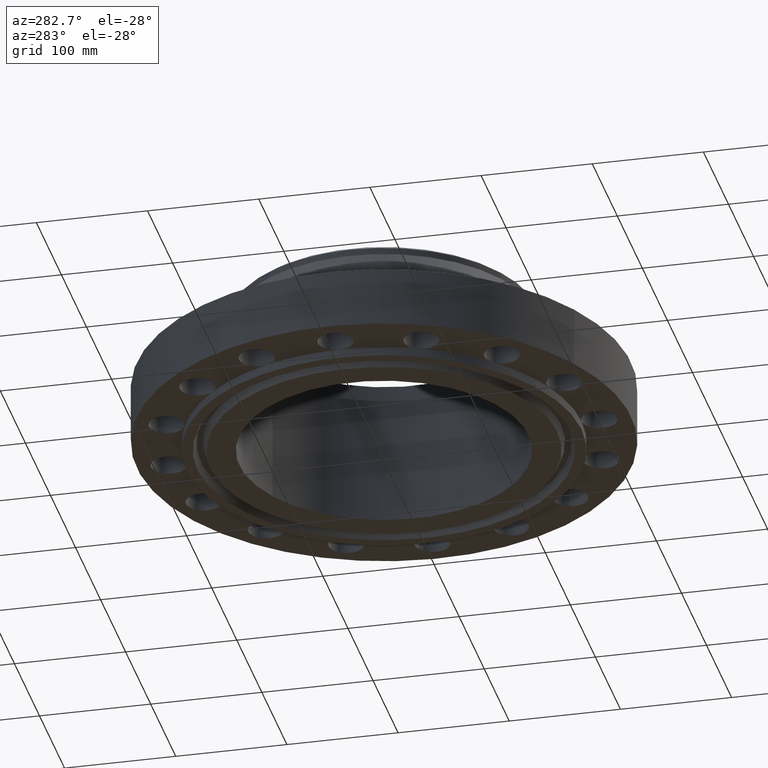
[diagram: clean part render]
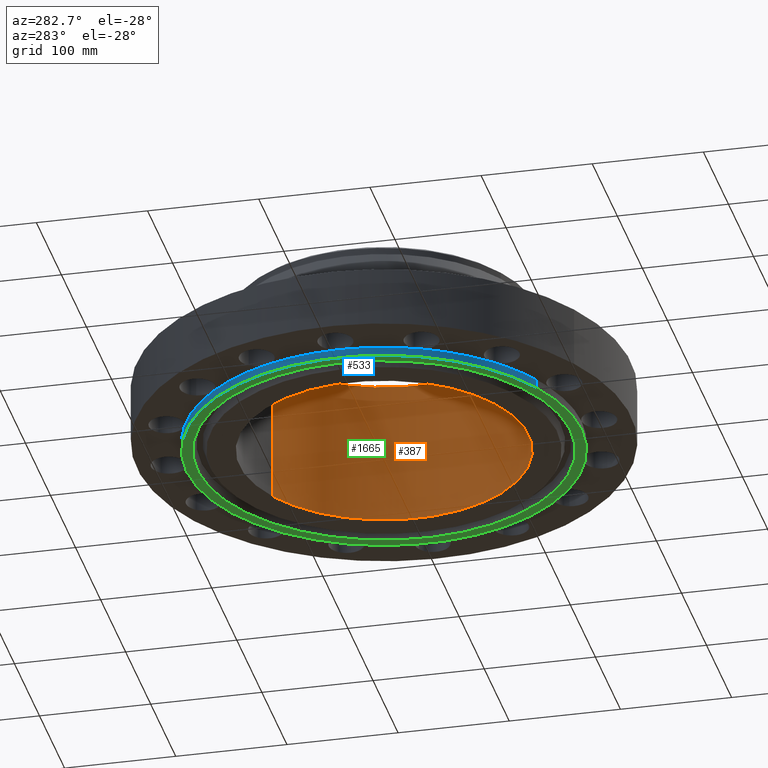
[diagram: same view with three faces highlighted in distinct colors, each labeled with its STEP entity id]
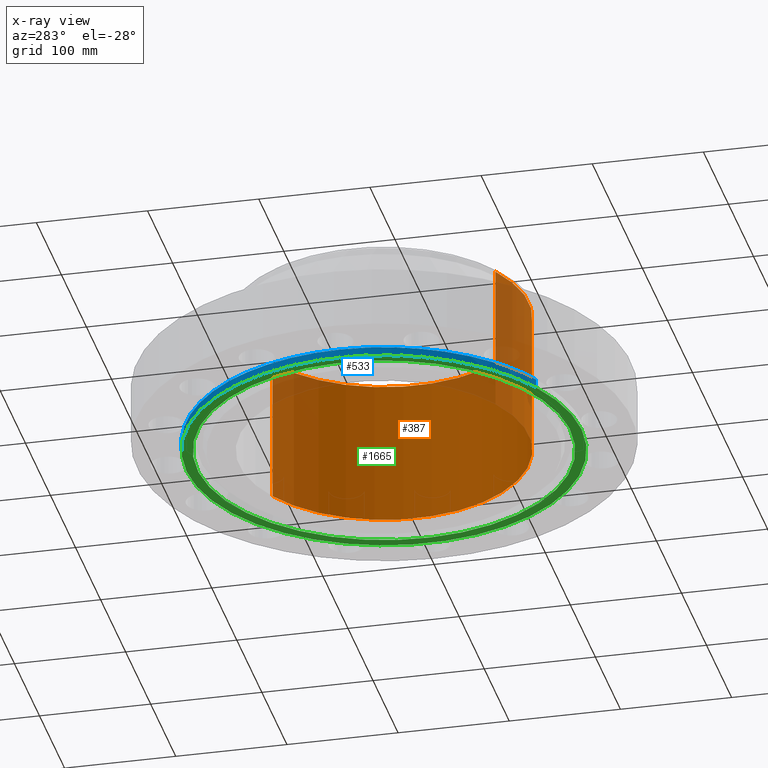
[diagram: x-ray of the same camera — body ghosted, the three highlighted faces saturated]
A machine part, auxiliary view with three faces highlighted in distinct colors.
The next image is the same camera in x-ray (body ghosted, the three faces saturated) — at least one of them is partly hidden behind the body in this view.
Their STEP definitions:

[orange] entity #387 — the highlighted cylindrical surface (partial cylindrical patch) has radius 130.175 mm, axis along (0, 0, -1).
#351=AXIS2_PLACEMENT_3D('Cylinder Axis2P3D',#348,#349,#350) ;
#355=AXIS2_PLACEMENT_3D('Circle Axis2P3D',#353,#354,$) ;
#371=AXIS2_PLACEMENT_3D('Circle Axis2P3D',#369,#370,$) ;
#348=CARTESIAN_POINT('Axis2P3D Location',(0.,0.,2.28350000001)) ;
#353=CARTESIAN_POINT('Axis2P3D Location',(0.,0.,4.88000000002)) ;
#357=CARTESIAN_POINT('Vertex',(2.45705588536,4.49761062971,4.88000000002)) ;
#359=CARTESIAN_POINT('Vertex',(-2.45705588536,-4.49761062971,4.88000000002)) ;
#362=CARTESIAN_POINT('Line Origine',(2.45705588536,4.49761062971,2.28350000001)) ;
#366=CARTESIAN_POINT('Vertex',(2.45705588536,4.49761062971,-0.313000000001)) ;
#369=CARTESIAN_POINT('Axis2P3D Location',(0.,0.,-0.313000000001)) ;
#373=CARTESIAN_POINT('Vertex',(-2.45705588536,-4.49761062971,-0.313000000001)) ;
#376=CARTESIAN_POINT('Line Origine',(-2.45705588536,-4.49761062971,2.28350000001)) ;
#349=DIRECTION('Axis2P3D Direction',(0.,0.,-0.0393700787402)) ;
#350=DIRECTION('Axis2P3D XDirection',(-0.0188750212049,-0.0345504945626,0.)) ;
#354=DIRECTION('Axis2P3D Direction',(0.,0.,-0.0393700787402)) ;
#363=DIRECTION('Vector Direction',(0.,0.,-0.0393700787402)) ;
#370=DIRECTION('Axis2P3D Direction',(0.,0.,-0.0393700787402)) ;
#377=DIRECTION('Vector Direction',(0.,0.,-0.0393700787402)) ;
#364=VECTOR('Line Direction',#363,0.0393700787402) ;
#378=VECTOR('Line Direction',#377,0.0393700787402) ;
#382=ORIENTED_EDGE('',*,*,#361,.F.) ;
#383=ORIENTED_EDGE('',*,*,#368,.T.) ;
#384=ORIENTED_EDGE('',*,*,#375,.T.) ;
#385=ORIENTED_EDGE('',*,*,#380,.F.) ;
#387=ADVANCED_FACE('PartBody',(#386),#352,.F.) ;
#356=CIRCLE('generated circle',#355,5.12500000002) ;
#372=CIRCLE('generated circle',#371,5.12500000002) ;
#352=CYLINDRICAL_SURFACE('generated cylinder',#351,5.12500000002) ;
#361=EDGE_CURVE('',#358,#360,#356,.T.) ;
#368=EDGE_CURVE('',#358,#367,#365,.T.) ;
#375=EDGE_CURVE('',#367,#374,#372,.T.) ;
#380=EDGE_CURVE('',#360,#374,#379,.T.) ;
#381=EDGE_LOOP('',(#382,#383,#384,#385)) ;
#386=FACE_OUTER_BOUND('',#381,.T.) ;
#365=LINE('Line',#362,#364) ;
#379=LINE('Line',#376,#378) ;
#358=VERTEX_POINT('',#357) ;
#360=VERTEX_POINT('',#359) ;
#367=VERTEX_POINT('',#366) ;
#374=VERTEX_POINT('',#373) ;

[blue] entity #533 — the highlighted cylindrical surface (partial cylindrical patch) has radius 177.8 mm, axis along (0, 0, -1).
#435=AXIS2_PLACEMENT_3D('Cylinder Axis2P3D',#432,#433,#434) ;
#439=AXIS2_PLACEMENT_3D('Circle Axis2P3D',#437,#438,$) ;
#455=AXIS2_PLACEMENT_3D('Circle Axis2P3D',#453,#454,$) ;
#462=AXIS2_PLACEMENT_3D('Circle Axis2P3D',#460,#461,$) ;
#469=AXIS2_PLACEMENT_3D('Circle Axis2P3D',#467,#468,$) ;
#476=AXIS2_PLACEMENT_3D('Circle Axis2P3D',#474,#475,$) ;
#483=AXIS2_PLACEMENT_3D('Circle Axis2P3D',#481,#482,$) ;
#490=AXIS2_PLACEMENT_3D('Circle Axis2P3D',#488,#489,$) ;
#497=AXIS2_PLACEMENT_3D('Circle Axis2P3D',#495,#496,$) ;
#502=AXIS2_PLACEMENT_3D('Circle Axis2P3D',#500,#501,$) ;
#509=AXIS2_PLACEMENT_3D('Circle Axis2P3D',#507,#508,$) ;
#79=CARTESIAN_POINT('Vertex',(-3.00038465792E-015,7.00000000003,8.39223703654E-016)) ;
#432=CARTESIAN_POINT('Axis2P3D Location',(0.,0.,2.28350000001)) ;
#437=CARTESIAN_POINT('Axis2P3D Location',(0.,0.,-0.313000000001)) ;
#441=CARTESIAN_POINT('Vertex',(-3.35597877024,-6.14307793326,-0.313000000001)) ;
#443=CARTESIAN_POINT('Vertex',(3.35597877024,6.14307793326,-0.313000000001)) ;
#446=CARTESIAN_POINT('Line Origine',(-3.35597877024,-6.14307793326,-0.156500000001)) ;
#450=CARTESIAN_POINT('Vertex',(-3.35597877024,-6.14307793326,5.59482469102E-016)) ;
#453=CARTESIAN_POINT('Axis2P3D Location',(0.,0.,8.39223703654E-016)) ;
#457=CARTESIAN_POINT('Vertex',(-4.94974746833,-4.94974746833,0.)) ;
#460=CARTESIAN_POINT('Axis2P3D Location',(0.,0.,8.39223703654E-016)) ;
#464=CARTESIAN_POINT('Vertex',(-6.4671567276,-2.67878402657,0.)) ;
#467=CARTESIAN_POINT('Axis2P3D Location',(0.,0.,8.39223703654E-016)) ;
#471=CARTESIAN_POINT('Vertex',(-7.00000000003,-2.23792987641E-015,0.)) ;
#474=CARTESIAN_POINT('Axis2P3D Location',(0.,0.,8.39223703654E-016)) ;
#478=CARTESIAN_POINT('Vertex',(-6.4671567276,2.67878402657,0.)) ;
#481=CARTESIAN_POINT('Axis2P3D Location',(0.,0.,8.39223703654E-016)) ;
#485=CARTESIAN_POINT('Vertex',(-4.94974746833,4.94974746833,0.)) ;
#488=CARTESIAN_POINT('Axis2P3D Location',(0.,0.,8.39223703654E-016)) ;
#492=CARTESIAN_POINT('Vertex',(-2.67878402657,6.4671567276,0.)) ;
#495=CARTESIAN_POINT('Axis2P3D Location',(0.,0.,8.39223703654E-016)) ;
#500=CARTESIAN_POINT('Axis2P3D Location',(0.,0.,8.39223703654E-016)) ;
#504=CARTESIAN_POINT('Vertex',(2.67878402657,6.4671567276,0.)) ;
#507=CARTESIAN_POINT('Axis2P3D Location',(0.,0.,8.39223703654E-016)) ;
#511=CARTESIAN_POINT('Vertex',(3.35597877024,6.14307793326,5.59482469102E-016)) ;
#514=CARTESIAN_POINT('Line Origine',(3.35597877024,6.14307793326,-0.156500000001)) ;
#433=DIRECTION('Axis2P3D Direction',(0.,0.,-0.0393700787402)) ;
#434=DIRECTION('Axis2P3D XDirection',(0.0188750212049,0.0345504945626,0.)) ;
#438=DIRECTION('Axis2P3D Direction',(0.,0.,-0.0393700787402)) ;
#447=DIRECTION('Vector Direction',(0.,0.,-0.0393700787402)) ;
#454=DIRECTION('Axis2P3D Direction',(0.,0.,-0.0393700787402)) ;
#461=DIRECTION('Axis2P3D Direction',(0.,0.,-0.0393700787402)) ;
#468=DIRECTION('Axis2P3D Direction',(0.,0.,-0.0393700787402)) ;
#475=DIRECTION('Axis2P3D Direction',(0.,0.,-0.0393700787402)) ;
#482=DIRECTION('Axis2P3D Direction',(0.,0.,-0.0393700787402)) ;
#489=DIRECTION('Axis2P3D Direction',(0.,0.,-0.0393700787402)) ;
#496=DIRECTION('Axis2P3D Direction',(0.,0.,-0.0393700787402)) ;
#501=DIRECTION('Axis2P3D Direction',(0.,0.,-0.0393700787402)) ;
#508=DIRECTION('Axis2P3D Direction',(0.,0.,-0.0393700787402)) ;
#515=DIRECTION('Vector Direction',(0.,0.,-0.0393700787402)) ;
#448=VECTOR('Line Direction',#447,0.0393700787402) ;
#516=VECTOR('Line Direction',#515,0.0393700787402) ;
#520=ORIENTED_EDGE('',*,*,#445,.F.) ;
#521=ORIENTED_EDGE('',*,*,#452,.T.) ;
#522=ORIENTED_EDGE('',*,*,#459,.T.) ;
#523=ORIENTED_EDGE('',*,*,#466,.T.) ;
#524=ORIENTED_EDGE('',*,*,#473,.T.) ;
#525=ORIENTED_EDGE('',*,*,#480,.T.) ;
#526=ORIENTED_EDGE('',*,*,#487,.T.) ;
#527=ORIENTED_EDGE('',*,*,#494,.T.) ;
#528=ORIENTED_EDGE('',*,*,#499,.T.) ;
#529=ORIENTED_EDGE('',*,*,#506,.T.) ;
#530=ORIENTED_EDGE('',*,*,#513,.T.) ;
#531=ORIENTED_EDGE('',*,*,#518,.F.) ;
#533=ADVANCED_FACE('PartBody',(#532),#436,.T.) ;
#440=CIRCLE('generated circle',#439,7.00000000003) ;
#456=CIRCLE('generated circle',#455,7.00000000003) ;
#463=CIRCLE('generated circle',#462,7.00000000003) ;
#470=CIRCLE('generated circle',#469,7.00000000003) ;
#477=CIRCLE('generated circle',#476,7.00000000003) ;
#484=CIRCLE('generated circle',#483,7.00000000003) ;
#491=CIRCLE('generated circle',#490,7.00000000003) ;
#498=CIRCLE('generated circle',#497,7.00000000003) ;
#503=CIRCLE('generated circle',#502,7.00000000003) ;
#510=CIRCLE('generated circle',#509,7.00000000003) ;
#436=CYLINDRICAL_SURFACE('generated cylinder',#435,7.00000000003) ;
#445=EDGE_CURVE('',#442,#444,#440,.T.) ;
#452=EDGE_CURVE('',#442,#451,#449,.F.) ;
#459=EDGE_CURVE('',#451,#458,#456,.T.) ;
#466=EDGE_CURVE('',#458,#465,#463,.T.) ;
#473=EDGE_CURVE('',#465,#472,#470,.T.) ;
#480=EDGE_CURVE('',#472,#479,#477,.T.) ;
#487=EDGE_CURVE('',#479,#486,#484,.T.) ;
#494=EDGE_CURVE('',#486,#493,#491,.T.) ;
#499=EDGE_CURVE('',#493,#80,#498,.T.) ;
#506=EDGE_CURVE('',#80,#505,#503,.T.) ;
#513=EDGE_CURVE('',#505,#512,#510,.T.) ;
#518=EDGE_CURVE('',#444,#512,#517,.F.) ;
#519=EDGE_LOOP('',(#520,#521,#522,#523,#524,#525,#526,#527,#528,#529,#530,#531)) ;
#532=FACE_OUTER_BOUND('',#519,.T.) ;
#449=LINE('Line',#446,#448) ;
#517=LINE('Line',#514,#516) ;
#80=VERTEX_POINT('',#79) ;
#442=VERTEX_POINT('',#441) ;
#444=VERTEX_POINT('',#443) ;
#451=VERTEX_POINT('',#450) ;
#458=VERTEX_POINT('',#457) ;
#465=VERTEX_POINT('',#464) ;
#472=VERTEX_POINT('',#471) ;
#479=VERTEX_POINT('',#478) ;
#486=VERTEX_POINT('',#485) ;
#493=VERTEX_POINT('',#492) ;
#505=VERTEX_POINT('',#504) ;
#512=VERTEX_POINT('',#511) ;

[green] entity #1665 — the highlighted planar face has unit normal (0, 0, -1).
#439=AXIS2_PLACEMENT_3D('Circle Axis2P3D',#437,#438,$) ;
#536=AXIS2_PLACEMENT_3D('Circle Axis2P3D',#534,#535,$) ;
#1641=AXIS2_PLACEMENT_3D('Plane Axis2P3D',#1638,#1639,#1640) ;
#1649=AXIS2_PLACEMENT_3D('Circle Axis2P3D',#1647,#1648,$) ;
#1658=AXIS2_PLACEMENT_3D('Circle Axis2P3D',#1656,#1657,$) ;
#437=CARTESIAN_POINT('Axis2P3D Location',(0.,0.,-0.313000000001)) ;
#441=CARTESIAN_POINT('Vertex',(-3.35597877024,-6.14307793326,-0.313000000001)) ;
#443=CARTESIAN_POINT('Vertex',(3.35597877024,6.14307793326,-0.313000000001)) ;
#534=CARTESIAN_POINT('Axis2P3D Location',(0.,0.,-0.313000000001)) ;
#1638=CARTESIAN_POINT('Axis2P3D Location',(0.,5.12500000002,-0.313000000001)) ;
#1647=CARTESIAN_POINT('Axis2P3D Location',(-1.1189649382E-015,-2.23792987641E-015,-0.313000000001)) ;
#1651=CARTESIAN_POINT('Vertex',(3.16876309742,-5.80038194284,-0.313000000001)) ;
#1653=CARTESIAN_POINT('Vertex',(-3.16876309742,5.80038194284,-0.313000000001)) ;
#1656=CARTESIAN_POINT('Axis2P3D Location',(0.,-1.1189649382E-015,-0.313000000001)) ;
#438=DIRECTION('Axis2P3D Direction',(0.,0.,-0.0393700787402)) ;
#535=DIRECTION('Axis2P3D Direction',(0.,0.,-0.0393700787402)) ;
#1639=DIRECTION('Axis2P3D Direction',(0.,0.,-0.0393700787402)) ;
#1640=DIRECTION('Axis2P3D XDirection',(0.0393700787402,0.,0.)) ;
#1648=DIRECTION('Axis2P3D Direction',(0.,0.,-0.0393700787402)) ;
#1657=DIRECTION('Axis2P3D Direction',(0.,0.,-0.0393700787402)) ;
#1644=ORIENTED_EDGE('',*,*,#445,.T.) ;
#1645=ORIENTED_EDGE('',*,*,#538,.T.) ;
#1662=ORIENTED_EDGE('',*,*,#1655,.F.) ;
#1663=ORIENTED_EDGE('',*,*,#1660,.F.) ;
#1664=FACE_BOUND('',#1661,.T.) ;
#1665=ADVANCED_FACE('PartBody',(#1646,#1664),#1642,.T.) ;
#440=CIRCLE('generated circle',#439,7.00000000003) ;
#537=CIRCLE('generated circle',#536,7.00000000003) ;
#1650=CIRCLE('generated circle',#1649,6.60950000003) ;
#1659=CIRCLE('generated circle',#1658,6.60950000003) ;
#445=EDGE_CURVE('',#442,#444,#440,.T.) ;
#538=EDGE_CURVE('',#444,#442,#537,.T.) ;
#1655=EDGE_CURVE('',#1652,#1654,#1650,.T.) ;
#1660=EDGE_CURVE('',#1654,#1652,#1659,.T.) ;
#1643=EDGE_LOOP('',(#1644,#1645)) ;
#1661=EDGE_LOOP('',(#1662,#1663)) ;
#1646=FACE_OUTER_BOUND('',#1643,.T.) ;
#1642=PLANE('',#1641) ;
#442=VERTEX_POINT('',#441) ;
#444=VERTEX_POINT('',#443) ;
#1652=VERTEX_POINT('',#1651) ;
#1654=VERTEX_POINT('',#1653) ;